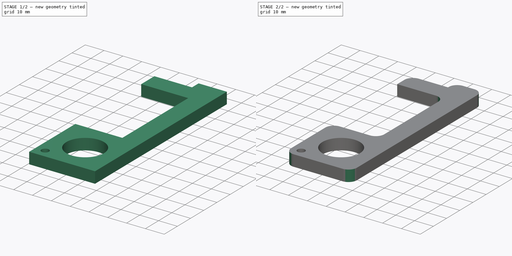
[diagram: build sequence overview — one tinted view per stage of 2, left to right]
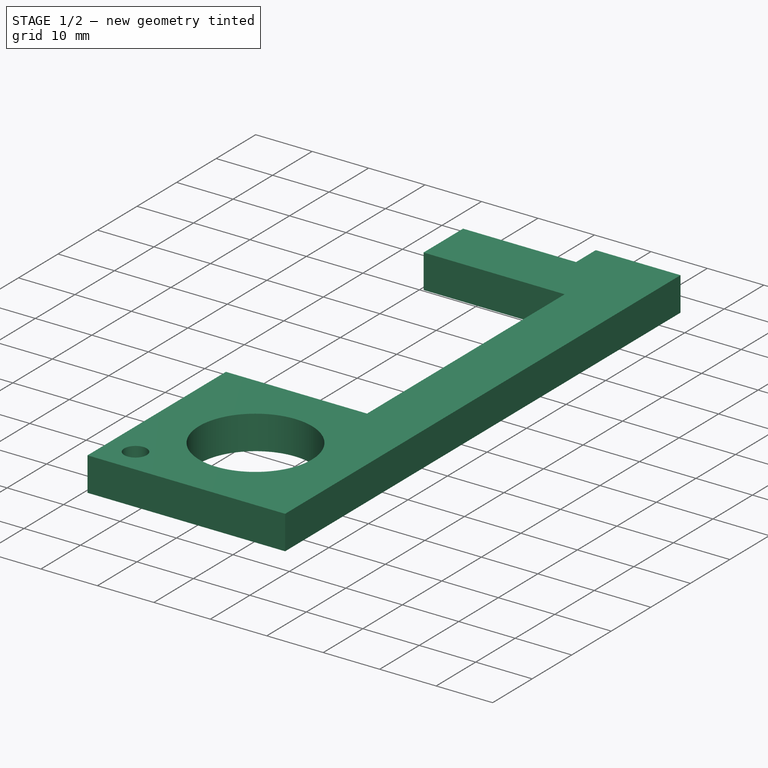
[diagram: stage 1 of 2 — iso view after this stage's code; geometry added in this stage tinted green]
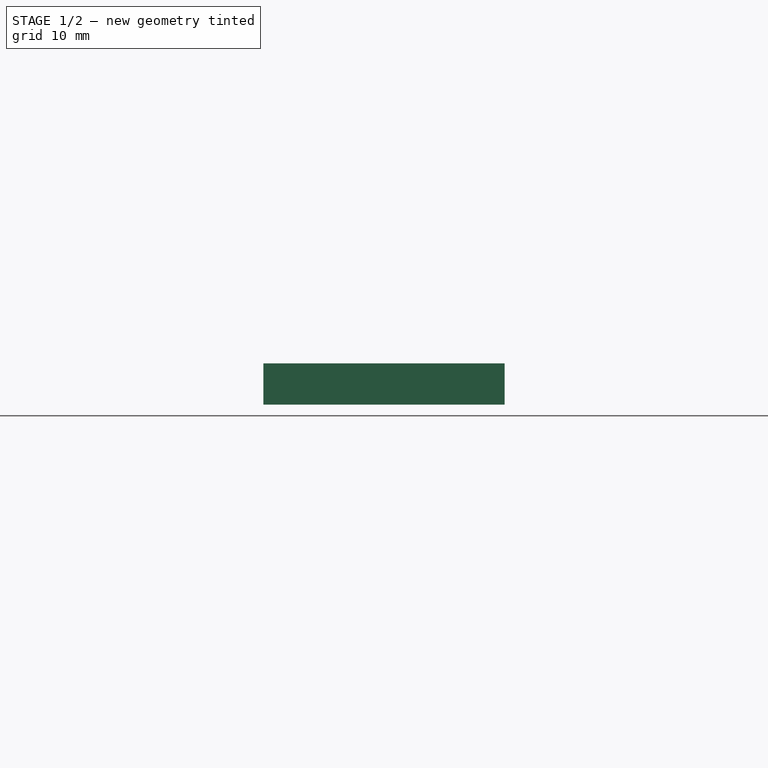
[diagram: stage 1 of 2 — front view after this stage's code; geometry added in this stage tinted green]
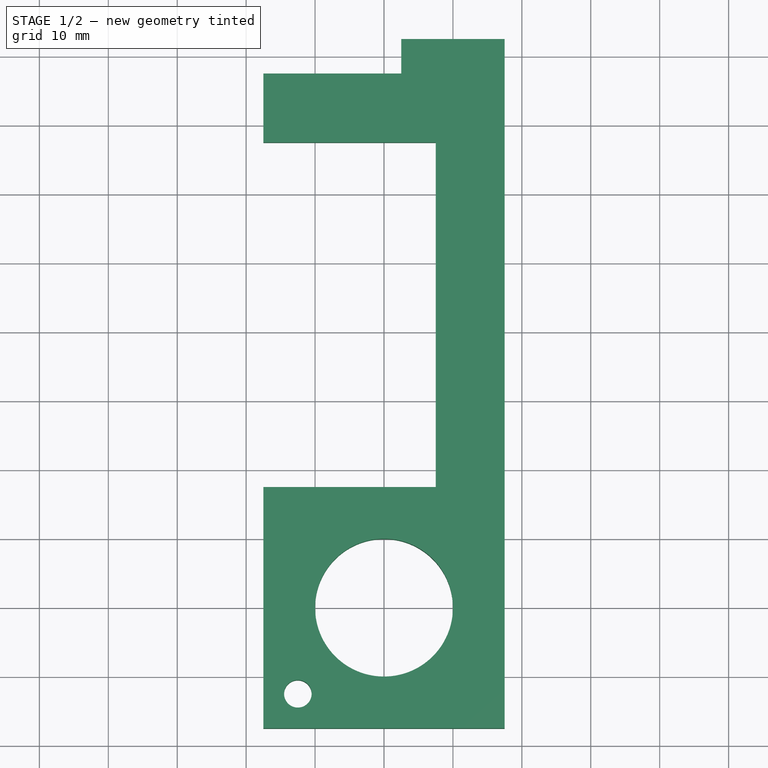
[diagram: stage 1 of 2 — top view after this stage's code; geometry added in this stage tinted green]
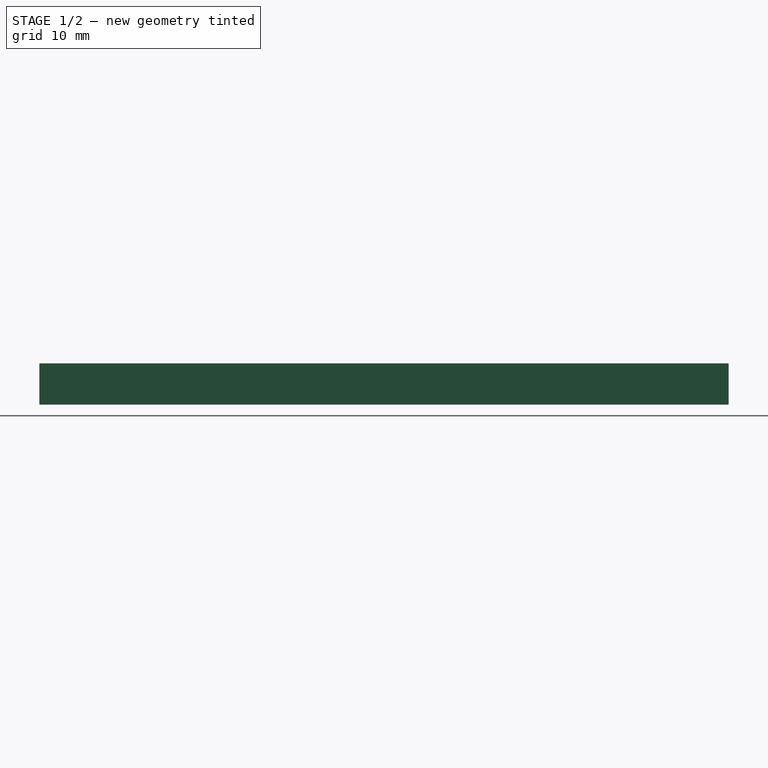
[diagram: stage 1 of 2 — right view after this stage's code; geometry added in this stage tinted green]
FCSTD DOCUMENT  (FreeCAD 0.18.4R)
Label: Hygiene Hand Antimicrobial
Comment: Hygiene Hand Antimicrobial Brass EDC Door Opener & Stylus\ndesign of StartGear\n
License: Public Domain
LicenseURL: http://en.wikipedia.org/wiki/Public_domain
objects: Sketcher::SketchObject×1, PartDesign::Pad×1, PartDesign::Fillet×1, PartDesign::Body×1, App::Part×1
note: 5 computed .brp shape members not serialized (recipe doc carries the construction recipe); baked Part::Feature solids carry a one-line shape summary decoded from their .brp

FEATURE [Sketcher::SketchObject] Sketch
  MapMode = 5
  Support = -> [XY_Plane001]
  sketch-geometry (16):
    g0: Circle CenterX=0 CenterY=0 CenterZ=0 NormalX=0 NormalY=0 NormalZ=1 AngleXU=0 Radius=10
    g1: LineSegment StartX=-17.5 StartY=17.5 StartZ=0 EndX=7.5 EndY=17.5 EndZ=0
    g2: LineSegment StartX=17.5 StartY=82.5 StartZ=0 EndX=17.5 EndY=-17.5 EndZ=0
    g3: LineSegment StartX=17.5 StartY=-17.5 StartZ=0 EndX=-17.5 EndY=-17.5 EndZ=0
    g4: LineSegment StartX=-17.5 StartY=-17.5 StartZ=0 EndX=-17.5 EndY=17.5 EndZ=0
    g5: LineSegment StartX=17.5 StartY=82.5 StartZ=0 EndX=2.5 EndY=82.5 EndZ=0
    g6: LineSegment StartX=2.5 StartY=82.5 StartZ=0 EndX=2.5 EndY=77.5 EndZ=0
    g7: LineSegment StartX=2.5 StartY=77.5 StartZ=0 EndX=-17.5 EndY=77.5 EndZ=0
    g8: LineSegment StartX=-17.5 StartY=77.5 StartZ=0 EndX=-17.5 EndY=67.5 EndZ=0
    g9: LineSegment StartX=-17.5 StartY=67.5 StartZ=0 EndX=7.5 EndY=67.5 EndZ=0
    g10: LineSegment StartX=7.5 StartY=67.5 StartZ=0 EndX=7.5 EndY=17.5 EndZ=0
    g11: Circle CenterX=-12.5 CenterY=-12.5 CenterZ=0 NormalX=0 NormalY=0 NormalZ=1 AngleXU=0 Radius=2
    g12: LineSegment [constr] StartX=17.5 StartY=-17.5 StartZ=0 EndX=0 EndY=0 EndZ=0
    g13: LineSegment [constr] StartX=0 StartY=0 StartZ=0 EndX=-17.5 EndY=17.5 EndZ=0
    g14: LineSegment [constr] StartX=0 StartY=0 StartZ=0 EndX=-17.5 EndY=-17.5 EndZ=0
    g15: LineSegment [constr] StartX=7.5 StartY=17.5 StartZ=0 EndX=17.5 EndY=17.5 EndZ=0
  constraints (44):
    c: Coincident(g0,g-1)
    c: Coincident(g2,g3)
    c: Coincident(g3,g4)
    c: Coincident(g4,g1)
    c: Horizontal(g1)
    c: Horizontal(g3)
    c: Vertical(g2)
    c: Vertical(g4)
    c: Radius(g0) = 10
    c: Horizontal(g5)
    c: Coincident(g5,g6)
    c: Coincident(g6,g7)
    c: Horizontal(g7)
    c: Coincident(g7,g8)
    c: Vertical(g8)
    c: Coincident(g8,g9)
    c: Horizontal(g9)
    c: Coincident(g9,g10)
    c: Vertical(g10)
    c: Vertical(g6)
    c: Coincident(g1,g10)
    c: DistanceX(g3,g3) = 35
    c: DistanceY(g4,g4) = 35
    c: Radius(g11) = 2
    c: Coincident(g2,g12)
    c: Coincident(g12,g0)
    c: Coincident(g12,g13)
    c: Coincident(g13,g1)
    c: Coincident(g14,g0)
    c: Coincident(g14,g3)
    c: PointOnObject(g11,g14)
    c: Equal(g12,g13)
    c: Parallel(g12,g13)
    c: DistanceX(g3,g11) = 5
    c: Coincident(g5,g2)
    c: DistanceY(g2,g2) = 100
    c: DistanceX(g5,g5) = 15
    c: DistanceX(g1,g1) = 25
    c: Coincident(g1,g15)
    c: PointOnObject(g15,g2)
    c: Horizontal(g15)
    c: Equal(g15,g8)
    c: DistanceY(g6,g6) = 5
    c: DistanceX(g9,g9) = 25
FEATURE [PartDesign::Pad] Pad
  Length = 6
  Length2 = 100
  Profile = -> Sketch
  Refine = true
  Type = 0
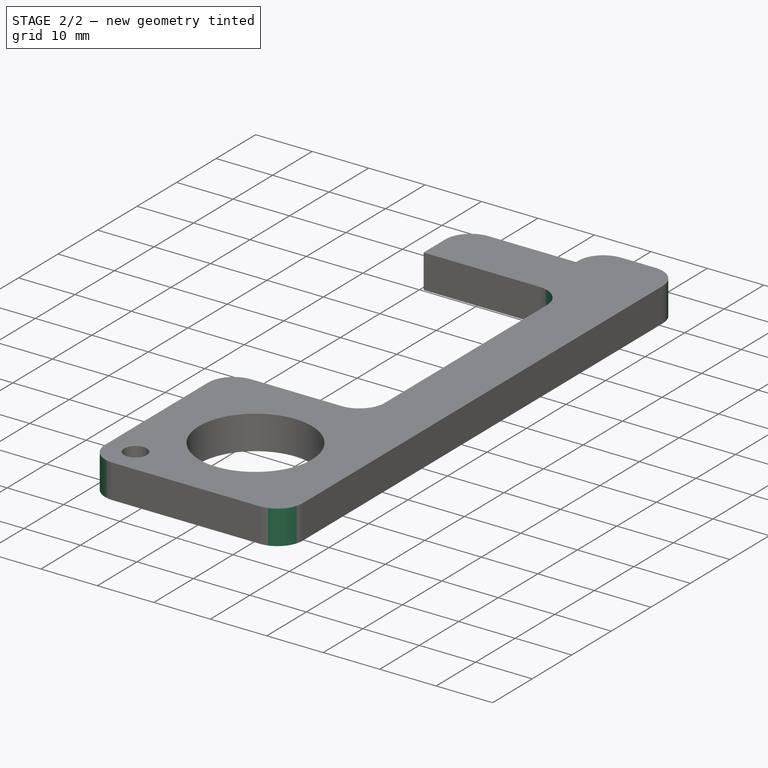
[diagram: stage 2 of 2 — iso view after this stage's code; geometry added in this stage tinted green]
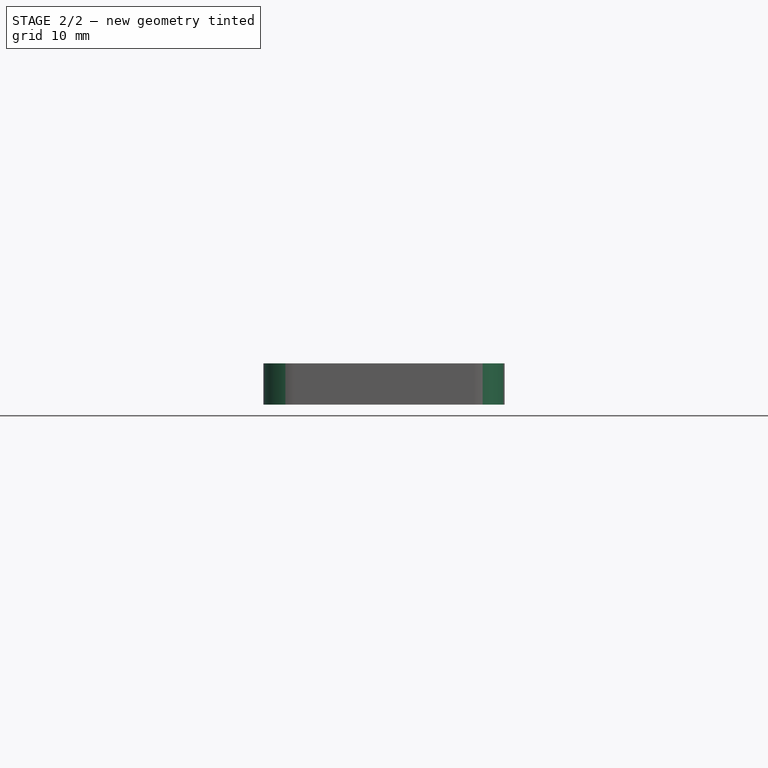
[diagram: stage 2 of 2 — front view after this stage's code; geometry added in this stage tinted green]
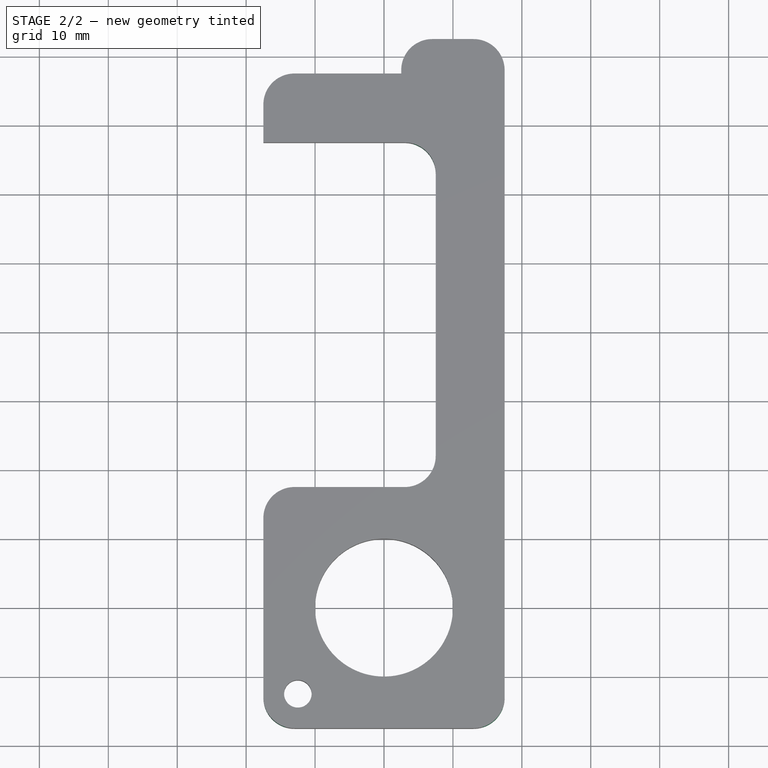
[diagram: stage 2 of 2 — top view after this stage's code; geometry added in this stage tinted green]
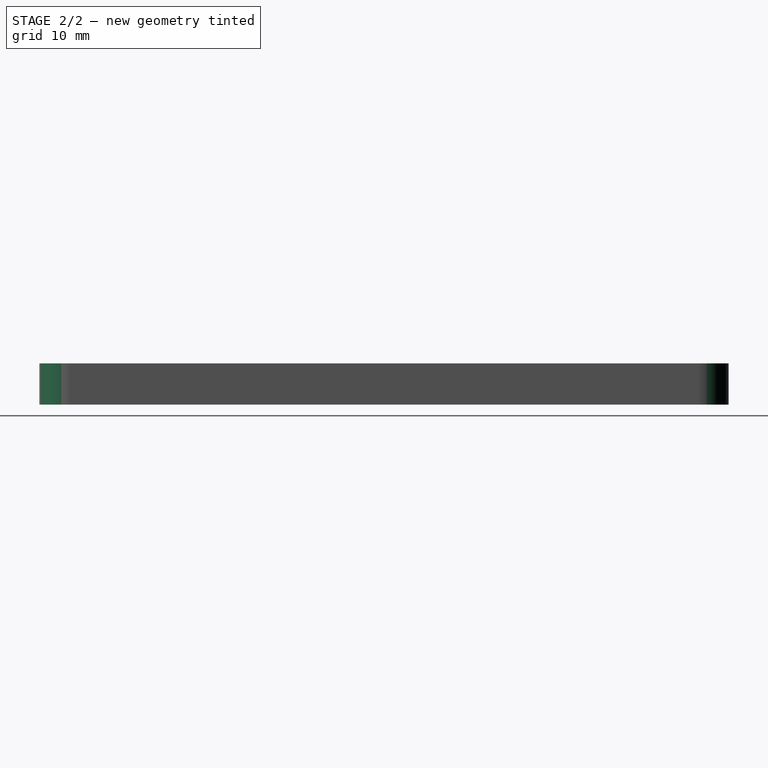
[diagram: stage 2 of 2 — right view after this stage's code; geometry added in this stage tinted green]
FEATURE [PartDesign::Fillet] Fillet
  Base = -> Pad [Edge2,Edge5,Edge8,Edge11,Edge20,Edge26,Edge1,Edge14]
  BaseFeature = -> Pad
  Radius = 4.5
FEATURE [PartDesign::Body] Body
  Group = -> [Sketch,Pad,Fillet]
  Origin = -> Origin001
  Tip = -> Fillet
FEATURE [App::Part] Part
  Group = -> [Body]
  Origin = -> Origin
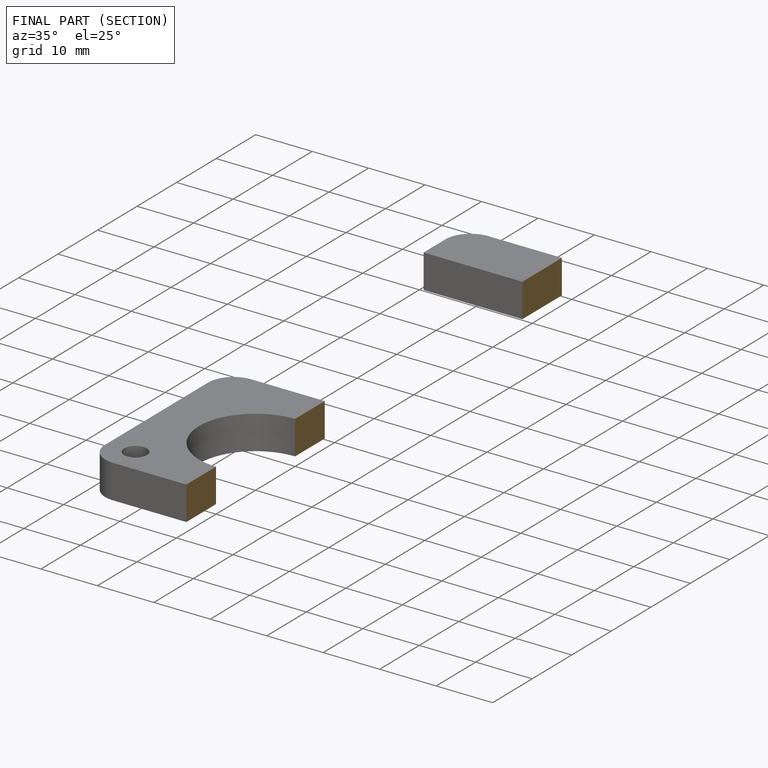
[diagram: finished part — half-section view (interior)]
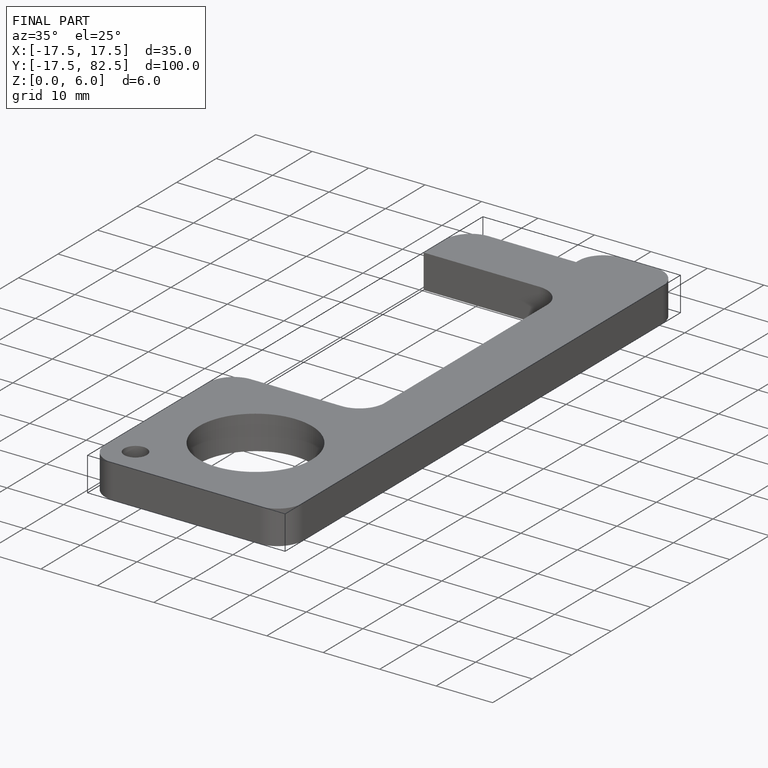
[diagram: finished part — iso view with bounding-box wireframe]
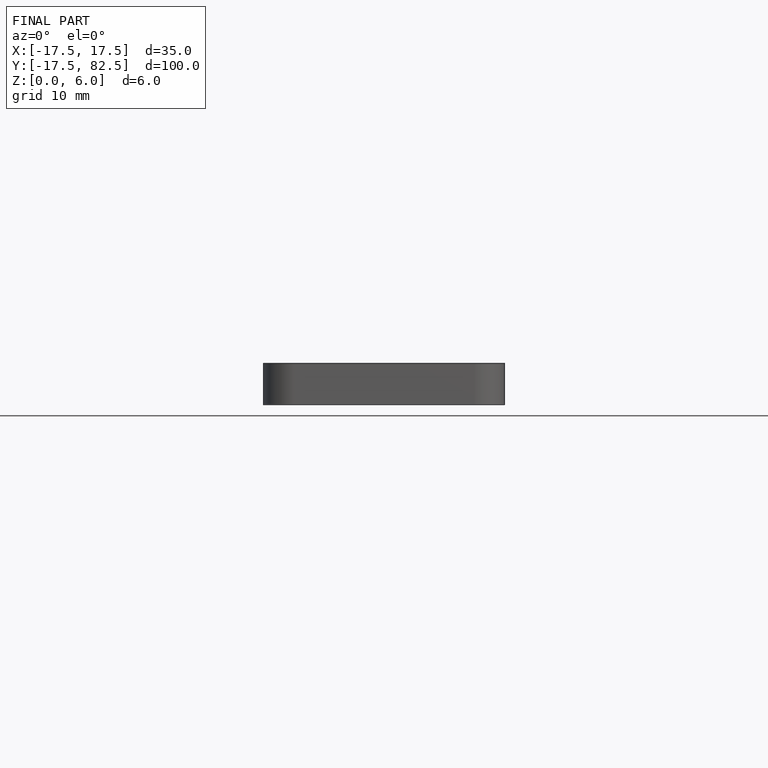
[diagram: finished part — front view with bounding-box wireframe]
